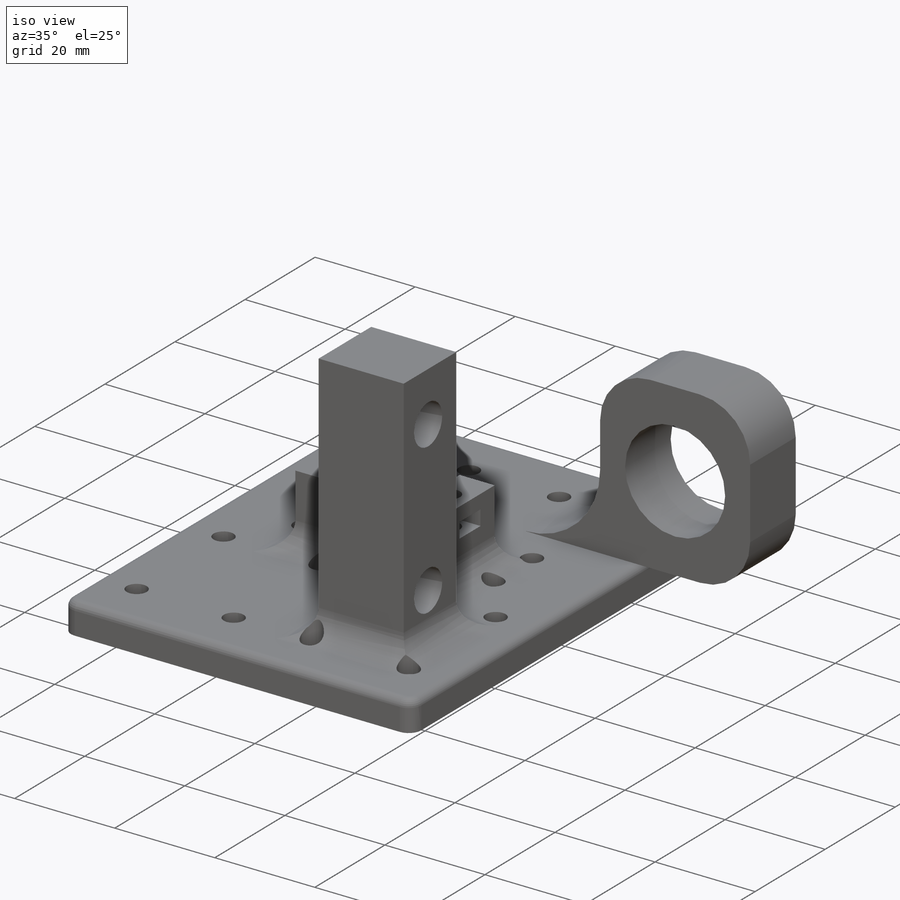
[diagram: iso view]
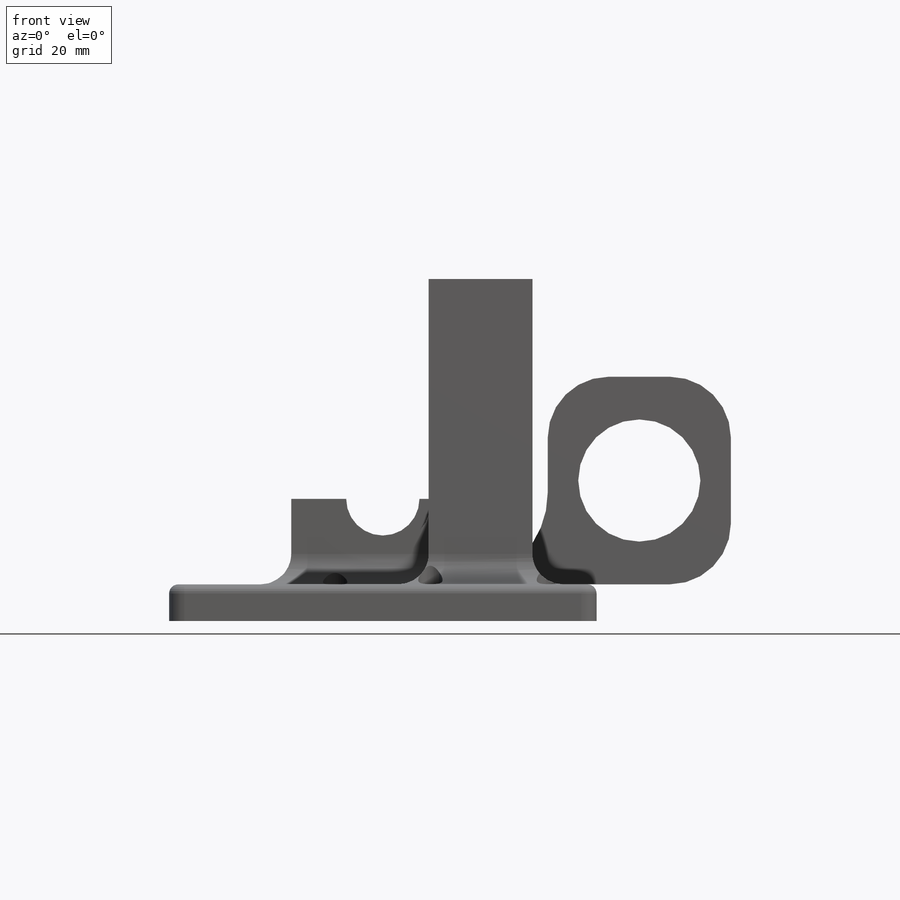
[diagram: front view]
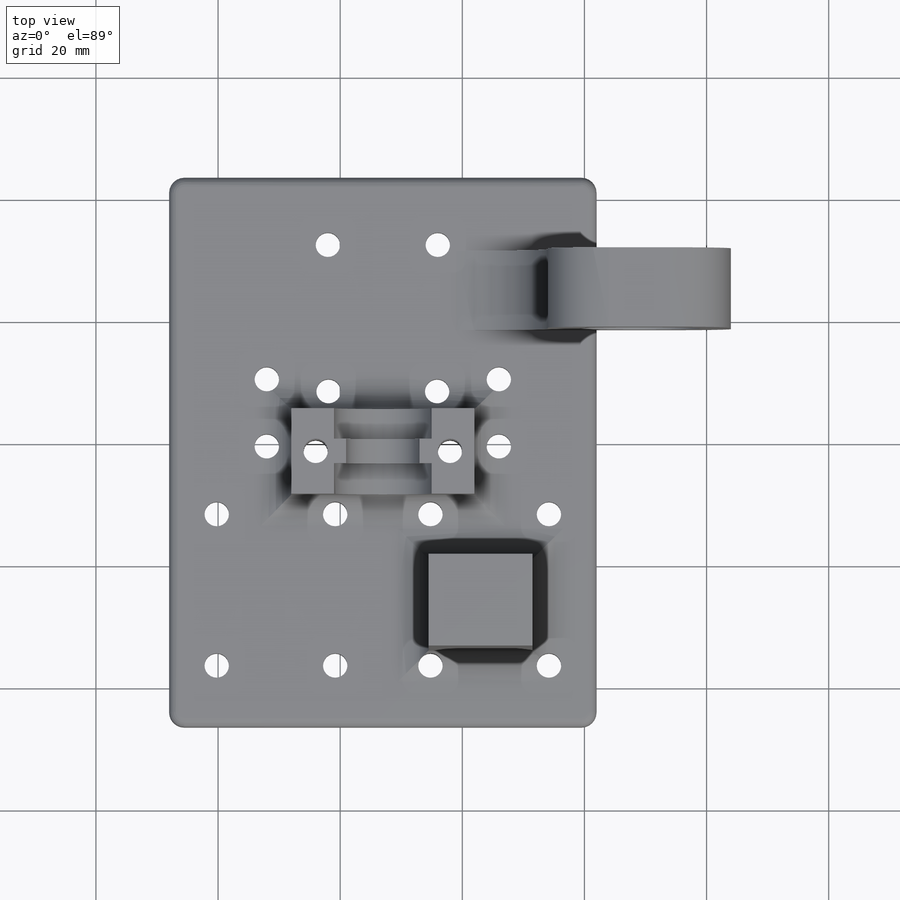
[diagram: top view]
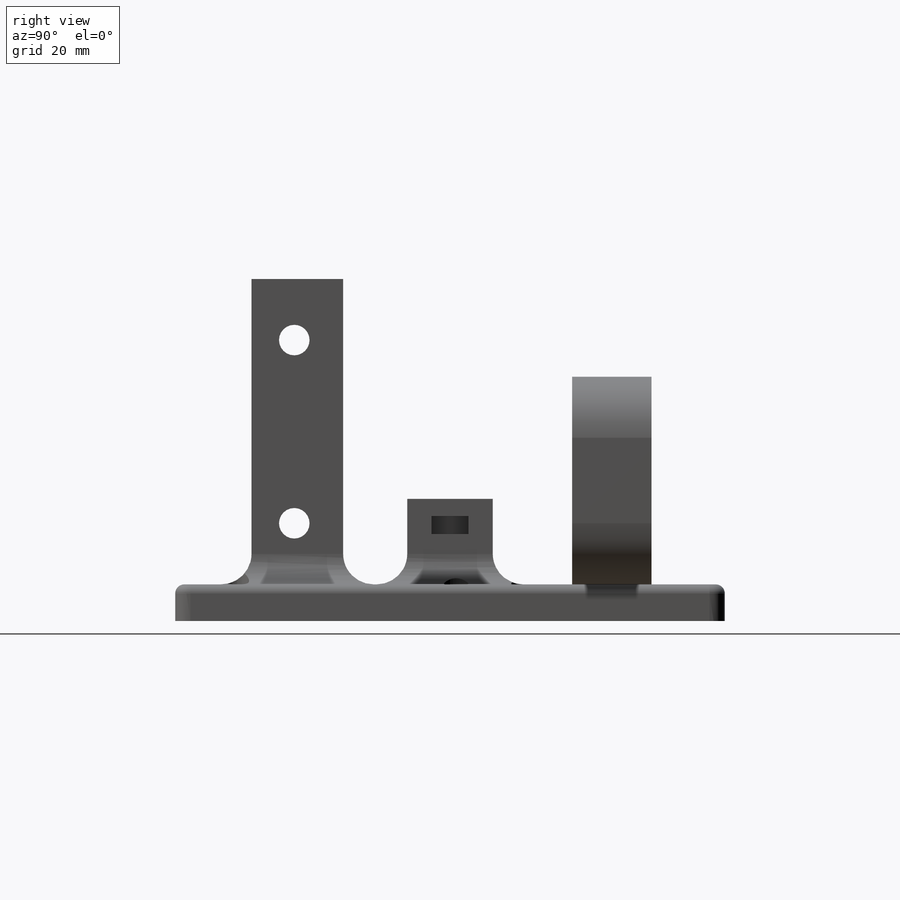
[diagram: right view]
SOLIDWORKS PART (.sldprt)
format: sldprt  version: not decoded by parser v0  size: 638,976 bytes
history: native  units: mm
features: sketch x14, cut_extrude x10, fillet x6, extrude x4, material x1 (+13 scaffold rows collapsed)
feature tree (48):
  scaffold x13  (default folders/planes/origin — collapsed)
  material  "Material <not specified>"
  sketch  "Sketch1"  dims[c1.D3=6.0mm c1.D1=90.0mm c1.D2=70.0mm c2.D3=9.0mm c2.D4=11.0mm c2.D5=24.0mm c2.D6=10.1mm c2.D7=7.8mm c2.D8=17.5mm c2.D9=22.5mm c2.D10=14.0mm c2.D11=30.0mm c2.D12=15.0mm]
  extrude  "Boss-Extrude1"  Depth=6mm
  sketch  "Sketch3"  dims[D1=14.0mm D2=30.0mm D3=7.0mm D4=15.0mm]
  extrude  "Boss-Extrude2"  Depth=14mm
  fillet  "Fillet1"  Radius=2.5mm
  fillet  "Fillet2"  Radius=1.5mm
  sketch  "Sketch4"  dims[D1=11.0mm]
  cut_extrude  "Cut-Extrude1"  Depth=22mm
  sketch  "Sketch5"  dims[D1=~5.672313mm]
  cut_extrude  "Cut-Extrude2"  Depth=22mm
  sketch  "Sketch6"  dims[D1=12.0mm D2=16.0mm D3=~7.648277mm]
  cut_extrude  "Cut-Extrude4"  Depth=5mm
  sketch  "Sketch9"  dims[D1=~7.172293mm]
  cut_extrude  "Cut-Extrude5"  Depth=5mm
  fillet  "Fillet3"  Radius=5mm
  sketch  "Sketch10"  dims[D1=27.0mm D2=30.0mm D3=20.0mm D4=13.0mm]
  extrude  "Boss-Extrude5"  Depth=34mm
  sketch  "Sketch13"  dims[D1=~9.945998mm]
  cut_extrude  "Cut-Extrude6"  Depth=34mm
  fillet  "Fillet5"  Radius=10mm
  sketch  "Sketch14"  dims[D1=15.0mm D2=11.0mm D3=17.0mm D4=9.0mm D5=7.0mm]
  extrude  "Boss-Extrude6"  Depth=50mm
  sketch  "Sketch15"  dims[D1=30.0mm D2=10.0mm D3=7.0mm D4=7.0mm]
  cut_extrude  "Cut-Extrude7"  Depth=12mm
  sketch  "Sketch17"  dims[D1=~1.791851mm]
  cut_extrude  "Cut-Extrude8"  Depth=30mm
  fillet  "Fillet9"  Radius=5mm
  sketch  "Sketch19"  dims[D1=3.0mm D2=6.0mm D3=2.8mm D4=4.0mm]
  cut_extrude  "Cut-Extrude9"  Depth=6.5mm
  sketch  "Sketch20"  dims[D1=6.0mm D2=3.0mm D3=2.8mm D4=4.0mm]
  cut_extrude  "Cut-Extrude10"  Depth=6.5mm
  fillet  "Fillet10"  Radius=15mm
  sketch  "Sketch22"  dims[c1.D1=~4.055438mm c1.D3=~3.754539mm c2.D1=16.0mm c2.D2=33.0mm c2.D3=5.5mm]
  cut_extrude  "Cut-Extrude14"  Depth=10mm
decode coverage: 34 of 34 modeling features carry decoded parameters
note: ~ marks probable driven/reference dimensions
note: suppression state not decoded; provenance and decode notes live in map.json
